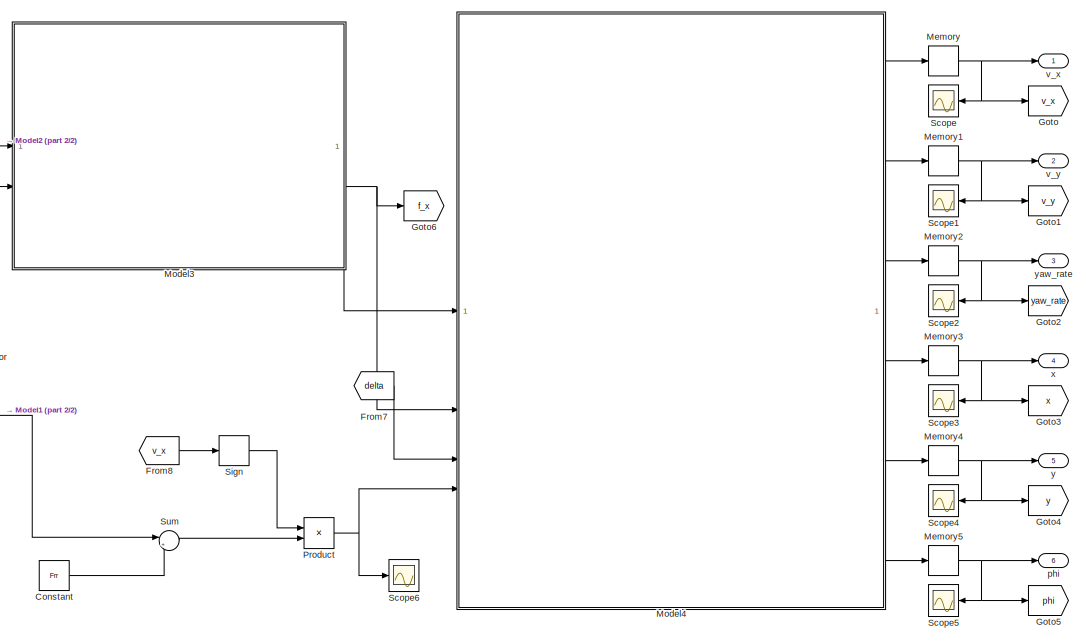
[diagram: root canvas - part 1/2, right side, full height]
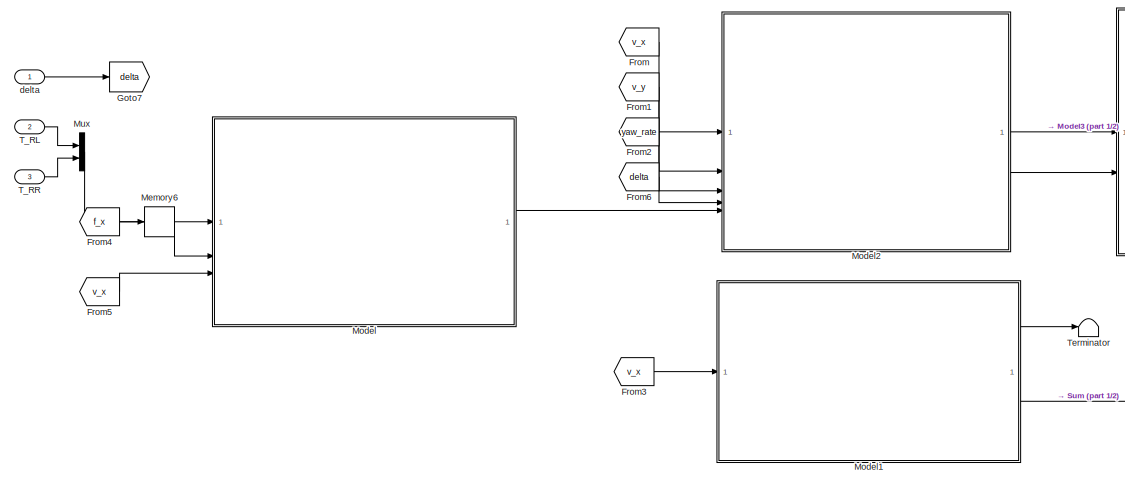
[diagram: root canvas - part 2/2, middle left region]
MODEL slx_557e425a048a
KIND model
CONFIG AbsTol = auto
CONFIG EnableMultiTasking = off
CONFIG FixedStep = Ts
CONFIG MaxStep = auto
CONFIG MinStep = auto
CONFIG RelTol = 1e-3
CONFIG SampleTimeConstraint = Unconstrained
CONFIG SolverName = FixedStepAuto
CONFIG StartTime = 0.0
CONFIG StopTime = 60
BLOCK [Constant] Constant
  Value = Frr
BLOCK [From] From
  GotoTag = v_x
BLOCK [From] From1
  GotoTag = v_y
BLOCK [From] From2
  GotoTag = yaw_rate
BLOCK [From] From3
  GotoTag = v_x
BLOCK [From] From4
  GotoTag = f_x
BLOCK [From] From5
  GotoTag = v_x
BLOCK [From] From6
  GotoTag = delta
BLOCK [From] From7
  GotoTag = delta
BLOCK [From] From8
  GotoTag = v_x
BLOCK [Goto] Goto
  GotoTag = v_x
BLOCK [Goto] Goto1
  GotoTag = v_y
BLOCK [Goto] Goto2
  GotoTag = yaw_rate
BLOCK [Goto] Goto3
  GotoTag = x
BLOCK [Goto] Goto4
  GotoTag = y
BLOCK [Goto] Goto5
  GotoTag = phi
BLOCK [Goto] Goto6
  GotoTag = f_x
BLOCK [Goto] Goto7
  GotoTag = delta
BLOCK [Memory] Memory
  InitialCondition = v0
BLOCK [Memory] Memory1
BLOCK [Memory] Memory2
BLOCK [Memory] Memory3
BLOCK [Memory] Memory4
BLOCK [Memory] Memory5
BLOCK [Memory] Memory6
  InitialCondition = [0 0 0 0]
BLOCK [ModelReference] Model
  ModelNameDialog = calcul_vitesse_roues.slx
  ModelReferenceVersion = 1.23
BLOCK [ModelReference] Model1
  ModelNameDialog = forces_aero.slx
  ModelReferenceVersion = 1.4
BLOCK [ModelReference] Model2
  ModelNameDialog = calcul_SA_SR.slx
  ModelReferenceVersion = 1.27
BLOCK [ModelReference] Model3
  ModelNameDialog = pneumatiques.slx
  ModelReferenceVersion = 1.26
BLOCK [ModelReference] Model4
  ModelNameDialog = state_variables.slx
  ModelReferenceVersion = 1.3
BLOCK [Mux] Mux
  DisplayOption = bar
  Inputs = 2
BLOCK [Product] Product
BLOCK [Scope] Scope
  Floating = off
  NameLocation = top
  NumInputPorts = 1
  ScopeSpecificationString = Simulink.scopes.TimeScopeBlockCfg('CurrentConfiguration', extmgr.ConfigurationSet(extmgr.Configuration('Core','General UI',true),extmgr.Configuration('Core','Source UI',true),extmgr.Configuration('Sources','WiredSimulink',true),extmgr.Configuration('Visuals','Time Domain',true,'SerializedDisplays',{struct('MinYLimReal','3.83513','MaxYLimReal','14.99264','YLabelReal','','MinYLimMag','3.83513','MaxY...<+1469ch>
BLOCK [Scope] Scope1
  Floating = off
  NameLocation = top
  NumInputPorts = 1
  ScopeSpecificationString = Simulink.scopes.TimeScopeBlockCfg('CurrentConfiguration', extmgr.ConfigurationSet(extmgr.Configuration('Core','General UI',true),extmgr.Configuration('Core','Source UI',true),extmgr.Configuration('Sources','WiredSimulink',true,'DataLoggingVariableName','ScopeData1'),extmgr.Configuration('Visuals','Time Domain',true,'SerializedDisplays',{struct('MinYLimReal','-0.18534','MaxYLimReal','1.66804','YLab...<+1488ch>
BLOCK [Scope] Scope2
  Floating = off
  NameLocation = top
  NumInputPorts = 1
  ScopeSpecificationString = Simulink.scopes.TimeScopeBlockCfg('CurrentConfiguration', extmgr.ConfigurationSet(extmgr.Configuration('Core','General UI',true),extmgr.Configuration('Core','Source UI',true),extmgr.Configuration('Sources','WiredSimulink',true,'DataLoggingVariableName','ScopeData2'),extmgr.Configuration('Visuals','Time Domain',true,'SerializedDisplays',{struct('MinYLimReal','-0.23341','MaxYLimReal','2.10073','YLab...<+1455ch>
BLOCK [Scope] Scope3
  Floating = off
  NameLocation = top
  NumInputPorts = 1
  ScopeSpecificationString = Simulink.scopes.TimeScopeBlockCfg('CurrentConfiguration', extmgr.ConfigurationSet(extmgr.Configuration('Core','General UI',true),extmgr.Configuration('Core','Source UI',true),extmgr.Configuration('Sources','WiredSimulink',true,'DataLoggingVariableName','ScopeData3'),extmgr.Configuration('Visuals','Time Domain',true,'SerializedDisplays',{struct('MinYLimReal','-31.0109','MaxYLimReal','279.09807','YL...<+1463ch>
BLOCK [Scope] Scope4
  Floating = off
  NameLocation = top
  NumInputPorts = 1
  ScopeSpecificationString = Simulink.scopes.TimeScopeBlockCfg('CurrentConfiguration', extmgr.ConfigurationSet(extmgr.Configuration('Core','General UI',true),extmgr.Configuration('Core','Source UI',true),extmgr.Configuration('Sources','WiredSimulink',true,'DataLoggingVariableName','ScopeData4'),extmgr.Configuration('Visuals','Time Domain',true,'SerializedDisplays',{struct('MinYLimReal','-2.19434','MaxYLimReal','19.74906','YLa...<+1459ch>
BLOCK [Scope] Scope5
  Floating = off
  NameLocation = top
  NumInputPorts = 1
  ScopeSpecificationString = Simulink.scopes.TimeScopeBlockCfg('CurrentConfiguration', extmgr.ConfigurationSet(extmgr.Configuration('Core','General UI',true),extmgr.Configuration('Core','Source UI',true),extmgr.Configuration('Sources','WiredSimulink',true,'DataLoggingVariableName','ScopeData5'),extmgr.Configuration('Visuals','Time Domain',true,'SerializedDisplays',{struct('MinYLimReal','-6.50506','MaxYLimReal','58.54553','YLa...<+1459ch>
BLOCK [Scope] Scope6
  Floating = off
  NumInputPorts = 1
  ScopeSpecificationString = Simulink.scopes.TimeScopeBlockCfg('CurrentConfiguration', extmgr.ConfigurationSet(extmgr.Configuration('Core','General UI',true),extmgr.Configuration('Core','Source UI',true),extmgr.Configuration('Sources','WiredSimulink',true,'DataLoggingVariableName','ScopeData6'),extmgr.Configuration('Visuals','Time Domain',true,'SerializedDisplays',{struct('MinYLimReal','54.21459','MaxYLimReal','136.48974','YL...<+1498ch>
BLOCK [Signum] Sign
BLOCK [Sum] Sum
  Inputs = |++
BLOCK [Inport] T_RL
  Port = 2
BLOCK [Inport] T_RR
  Port = 3
BLOCK [Terminator] Terminator
BLOCK [Inport] delta
BLOCK [Outport] phi
  Port = 6
BLOCK [Outport] v_x
BLOCK [Outport] v_y
  Port = 2
BLOCK [Outport] x
  Port = 4
BLOCK [Outport] y
  Port = 5
BLOCK [Outport] yaw_rate
  Port = 3
LINE Constant:1 -> Sum:2
LINE From1:1 -> Model2:2
LINE From2:1 -> Model2:3
LINE From3:1 -> Model1:1
LINE From4:1 -> Memory6:1
LINE From5:1 -> Model:3
LINE From6:1 -> Model2:4
LINE From7:1 -> Model4:3
LINE From8:1 -> Sign:1
LINE From:1 -> Model2:1
NET Memory1:1 -> Goto1:1, Scope1:1, v_y:1
NET Memory2:1 -> Goto2:1, Scope2:1, yaw_rate:1
NET Memory3:1 -> Goto3:1, Scope3:1, x:1
NET Memory4:1 -> Goto4:1, Scope4:1, y:1
NET Memory5:1 -> Goto5:1, Scope5:1, phi:1
LINE Memory6:1 -> Model:2
NET Memory:1 -> Goto:1, Scope:1, v_x:1
LINE Model1:1 -> Terminator:1
LINE Model1:2 -> Sum:1
LINE Model2:1 -> Model3:1
LINE Model2:2 -> Model3:2
LINE Model3:1 -> Model4:1
NET Model3:2 -> Goto6:1, Model4:2
LINE Model4:1 -> Memory:1
LINE Model4:2 -> Memory1:1
LINE Model4:3 -> Memory2:1
LINE Model4:4 -> Memory3:1
LINE Model4:5 -> Memory4:1
LINE Model4:6 -> Memory5:1
LINE Model:1 -> Model2:5
LINE Mux:1 -> Model:1
NET Product:1 -> Model4:4, Scope6:1
LINE Sign:1 -> Product:1
LINE Sum:1 -> Product:2
LINE T_RL:1 -> Mux:1
LINE T_RR:1 -> Mux:2
LINE delta:1 -> Goto7:1
note: NET lines group one-source signal fan-out (src -> all destinations, sorted); 1:1 wires keep LINE
